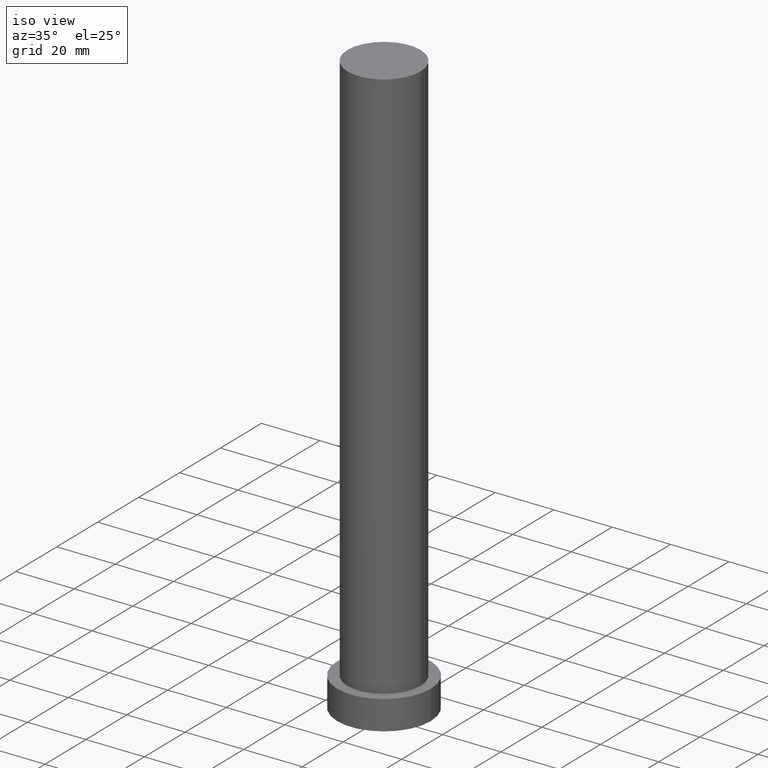
[diagram: clean part render]
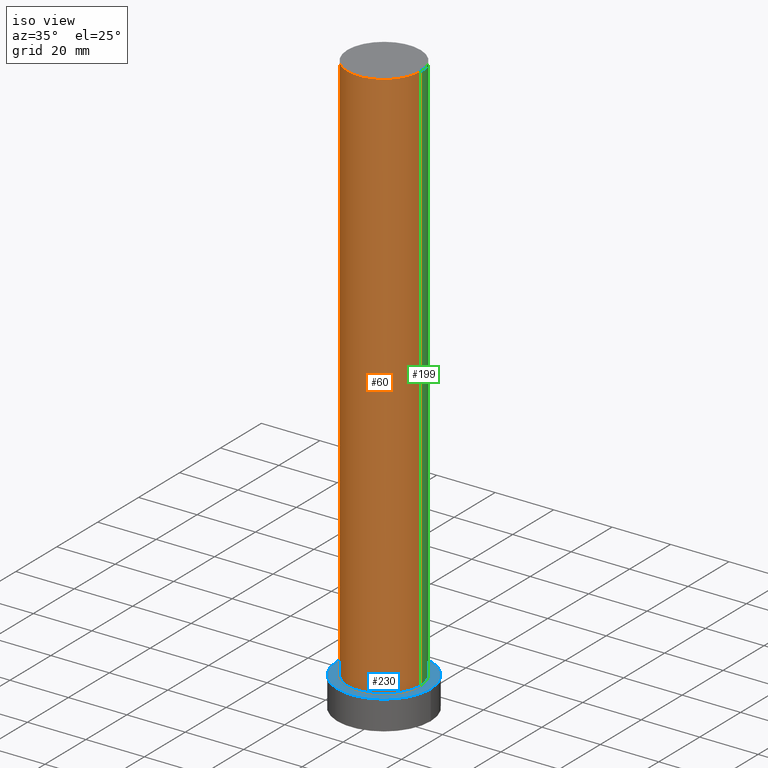
[diagram: same view with three faces highlighted in distinct colors, each labeled with its STEP entity id]
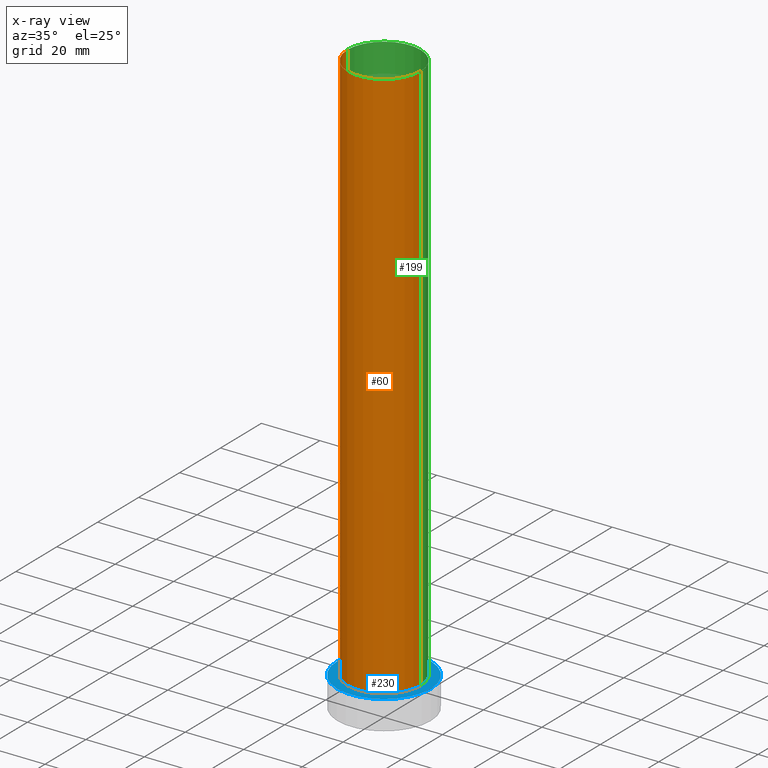
[diagram: x-ray of the same camera — body ghosted, the three highlighted faces saturated]
A machine part, iso view with three faces highlighted in distinct colors.
The next image is the same camera in x-ray (body ghosted, the three faces saturated) — at least one of them is partly hidden behind the body in this view.
Their STEP definitions:

[orange] entity #60 — the highlighted cylindrical surface (partial cylindrical patch) has radius 12.5 mm, axis along (-0, -0, -1).
#1 = CARTESIAN_POINT ( 'NONE',  ( 12.50000000000000000, 1.530808498934191521E-15, 10.00000000000000000 ) ) ;
#5 = CARTESIAN_POINT ( 'NONE',  ( -12.50000000000000000, 0.000000000000000000, 10.00000000000000000 ) ) ;
#14 = DIRECTION ( 'NONE',  ( 0.000000000000000000, 0.000000000000000000, 1.000000000000000000 ) ) ;
#15 = ORIENTED_EDGE ( 'NONE', *, *, #24, .F. ) ;
#18 = VECTOR ( 'NONE', #54, 1000.000000000000000 ) ;
#24 = EDGE_CURVE ( 'NONE', #128, #110, #134, .T. ) ;
#27 = ORIENTED_EDGE ( 'NONE', *, *, #161, .F. ) ;
#33 = ORIENTED_EDGE ( 'NONE', *, *, #65, .T. ) ;
#36 = CARTESIAN_POINT ( 'NONE',  ( -12.50000000000000000, 0.000000000000000000, 200.0000000000000000 ) ) ;
#45 = LINE ( 'NONE', #192, #61 ) ;
#48 = ORIENTED_EDGE ( 'NONE', *, *, #80, .T. ) ;
#54 = DIRECTION ( 'NONE',  ( -0.000000000000000000, -0.000000000000000000, -1.000000000000000000 ) ) ;
#60 = ADVANCED_FACE ( 'NONE', ( #131 ), #94, .T. ) ;
#61 = VECTOR ( 'NONE', #241, 1000.000000000000000 ) ;
#65 = EDGE_CURVE ( 'NONE', #128, #164, #95, .T. ) ;
#76 = CARTESIAN_POINT ( 'NONE',  ( 12.50000000000000000, 1.530808498934191521E-15, 200.0000000000000000 ) ) ;
#80 = EDGE_CURVE ( 'NONE', #164, #108, #105, .T. ) ;
#89 = AXIS2_PLACEMENT_3D ( 'NONE', #174, #213, #211 ) ;
#90 = DIRECTION ( 'NONE',  ( 1.000000000000000000, 0.000000000000000000, 0.000000000000000000 ) ) ;
#94 = CYLINDRICAL_SURFACE ( 'NONE', #193, 12.50000000000000000 ) ;
#95 = LINE ( 'NONE', #36, #18 ) ;
#105 = CIRCLE ( 'NONE', #89, 12.50000000000000000 ) ;
#108 = VERTEX_POINT ( 'NONE', #1 ) ;
#110 = VERTEX_POINT ( 'NONE', #76 ) ;
#113 = DIRECTION ( 'NONE',  ( -1.000000000000000000, 0.000000000000000000, 0.000000000000000000 ) ) ;
#128 = VERTEX_POINT ( 'NONE', #172 ) ;
#131 = FACE_OUTER_BOUND ( 'NONE', #185, .T. ) ;
#134 = CIRCLE ( 'NONE', #149, 12.50000000000000000 ) ;
#149 = AXIS2_PLACEMENT_3D ( 'NONE', #187, #14, #90 ) ;
#152 = CARTESIAN_POINT ( 'NONE',  ( 0.000000000000000000, 0.000000000000000000, 200.0000000000000000 ) ) ;
#161 = EDGE_CURVE ( 'NONE', #110, #108, #45, .T. ) ;
#164 = VERTEX_POINT ( 'NONE', #5 ) ;
#172 = CARTESIAN_POINT ( 'NONE',  ( -12.50000000000000000, 0.000000000000000000, 200.0000000000000000 ) ) ;
#174 = CARTESIAN_POINT ( 'NONE',  ( 0.000000000000000000, 0.000000000000000000, 10.00000000000000000 ) ) ;
#185 = EDGE_LOOP ( 'NONE', ( #27, #15, #33, #48 ) ) ;
#187 = CARTESIAN_POINT ( 'NONE',  ( 0.000000000000000000, 0.000000000000000000, 200.0000000000000000 ) ) ;
#192 = CARTESIAN_POINT ( 'NONE',  ( 12.50000000000000000, 1.530808498934191521E-15, 200.0000000000000000 ) ) ;
#193 = AXIS2_PLACEMENT_3D ( 'NONE', #152, #210, #113 ) ;
#210 = DIRECTION ( 'NONE',  ( -0.000000000000000000, -0.000000000000000000, -1.000000000000000000 ) ) ;
#211 = DIRECTION ( 'NONE',  ( 1.000000000000000000, 0.000000000000000000, 0.000000000000000000 ) ) ;
#213 = DIRECTION ( 'NONE',  ( 0.000000000000000000, 0.000000000000000000, 1.000000000000000000 ) ) ;
#241 = DIRECTION ( 'NONE',  ( -0.000000000000000000, -0.000000000000000000, -1.000000000000000000 ) ) ;

[blue] entity #230 — the highlighted planar face has unit normal (0, 0, 1).
#1 = CARTESIAN_POINT ( 'NONE',  ( 12.50000000000000000, 1.530808498934191521E-15, 10.00000000000000000 ) ) ;
#5 = CARTESIAN_POINT ( 'NONE',  ( -12.50000000000000000, 0.000000000000000000, 10.00000000000000000 ) ) ;
#6 = DIRECTION ( 'NONE',  ( 0.000000000000000000, 0.000000000000000000, 1.000000000000000000 ) ) ;
#12 = ORIENTED_EDGE ( 'NONE', *, *, #249, .F. ) ;
#16 = EDGE_CURVE ( 'NONE', #166, #231, #238, .T. ) ;
#31 = EDGE_LOOP ( 'NONE', ( #121, #205 ) ) ;
#40 = AXIS2_PLACEMENT_3D ( 'NONE', #159, #136, #102 ) ;
#47 = EDGE_LOOP ( 'NONE', ( #208, #12 ) ) ;
#58 = DIRECTION ( 'NONE',  ( 1.000000000000000000, 0.000000000000000000, -0.000000000000000000 ) ) ;
#74 = CIRCLE ( 'NONE', #255, 16.00000000000000000 ) ;
#78 = PLANE ( 'NONE',  #227 ) ;
#80 = EDGE_CURVE ( 'NONE', #164, #108, #105, .T. ) ;
#87 = DIRECTION ( 'NONE',  ( 1.000000000000000000, 0.000000000000000000, 0.000000000000000000 ) ) ;
#89 = AXIS2_PLACEMENT_3D ( 'NONE', #174, #213, #211 ) ;
#98 = FACE_BOUND ( 'NONE', #47, .T. ) ;
#99 = CARTESIAN_POINT ( 'NONE',  ( 16.00000000000000000, 1.959434878635765131E-15, 10.00000000000000000 ) ) ;
#102 = DIRECTION ( 'NONE',  ( 1.000000000000000000, 0.000000000000000000, 0.000000000000000000 ) ) ;
#105 = CIRCLE ( 'NONE', #89, 12.50000000000000000 ) ;
#108 = VERTEX_POINT ( 'NONE', #1 ) ;
#118 = CARTESIAN_POINT ( 'NONE',  ( 0.000000000000000000, 0.000000000000000000, 10.00000000000000000 ) ) ;
#121 = ORIENTED_EDGE ( 'NONE', *, *, #217, .T. ) ;
#129 = CIRCLE ( 'NONE', #40, 12.50000000000000000 ) ;
#136 = DIRECTION ( 'NONE',  ( 0.000000000000000000, 0.000000000000000000, 1.000000000000000000 ) ) ;
#138 = CARTESIAN_POINT ( 'NONE',  ( -16.00000000000000000, 0.000000000000000000, 10.00000000000000000 ) ) ;
#155 = CARTESIAN_POINT ( 'NONE',  ( 0.000000000000000000, 0.000000000000000000, 10.00000000000000000 ) ) ;
#159 = CARTESIAN_POINT ( 'NONE',  ( 0.000000000000000000, 0.000000000000000000, 10.00000000000000000 ) ) ;
#164 = VERTEX_POINT ( 'NONE', #5 ) ;
#166 = VERTEX_POINT ( 'NONE', #99 ) ;
#174 = CARTESIAN_POINT ( 'NONE',  ( 0.000000000000000000, 0.000000000000000000, 10.00000000000000000 ) ) ;
#177 = FACE_OUTER_BOUND ( 'NONE', #31, .T. ) ;
#178 = DIRECTION ( 'NONE',  ( 1.000000000000000000, 0.000000000000000000, 0.000000000000000000 ) ) ;
#195 = DIRECTION ( 'NONE',  ( 0.000000000000000000, 0.000000000000000000, 1.000000000000000000 ) ) ;
#205 = ORIENTED_EDGE ( 'NONE', *, *, #16, .T. ) ;
#207 = CARTESIAN_POINT ( 'NONE',  ( 0.000000000000000000, 0.000000000000000000, 10.00000000000000000 ) ) ;
#208 = ORIENTED_EDGE ( 'NONE', *, *, #80, .F. ) ;
#211 = DIRECTION ( 'NONE',  ( 1.000000000000000000, 0.000000000000000000, 0.000000000000000000 ) ) ;
#213 = DIRECTION ( 'NONE',  ( 0.000000000000000000, 0.000000000000000000, 1.000000000000000000 ) ) ;
#217 = EDGE_CURVE ( 'NONE', #231, #166, #74, .T. ) ;
#227 = AXIS2_PLACEMENT_3D ( 'NONE', #155, #6, #58 ) ;
#230 = ADVANCED_FACE ( 'NONE', ( #98, #177 ), #78, .T. ) ;
#231 = VERTEX_POINT ( 'NONE', #138 ) ;
#238 = CIRCLE ( 'NONE', #254, 16.00000000000000000 ) ;
#249 = EDGE_CURVE ( 'NONE', #108, #164, #129, .T. ) ;
#251 = DIRECTION ( 'NONE',  ( 0.000000000000000000, 0.000000000000000000, 1.000000000000000000 ) ) ;
#254 = AXIS2_PLACEMENT_3D ( 'NONE', #207, #251, #87 ) ;
#255 = AXIS2_PLACEMENT_3D ( 'NONE', #118, #195, #178 ) ;

[green] entity #199 — the highlighted cylindrical surface (partial cylindrical patch) has radius 12.5 mm, axis along (-0, -0, -1).
#1 = CARTESIAN_POINT ( 'NONE',  ( 12.50000000000000000, 1.530808498934191521E-15, 10.00000000000000000 ) ) ;
#5 = CARTESIAN_POINT ( 'NONE',  ( -12.50000000000000000, 0.000000000000000000, 10.00000000000000000 ) ) ;
#17 = DIRECTION ( 'NONE',  ( 0.000000000000000000, 0.000000000000000000, 1.000000000000000000 ) ) ;
#18 = VECTOR ( 'NONE', #54, 1000.000000000000000 ) ;
#36 = CARTESIAN_POINT ( 'NONE',  ( -12.50000000000000000, 0.000000000000000000, 200.0000000000000000 ) ) ;
#40 = AXIS2_PLACEMENT_3D ( 'NONE', #159, #136, #102 ) ;
#42 = CARTESIAN_POINT ( 'NONE',  ( 0.000000000000000000, 0.000000000000000000, 200.0000000000000000 ) ) ;
#44 = EDGE_CURVE ( 'NONE', #110, #128, #242, .T. ) ;
#45 = LINE ( 'NONE', #192, #61 ) ;
#54 = DIRECTION ( 'NONE',  ( -0.000000000000000000, -0.000000000000000000, -1.000000000000000000 ) ) ;
#59 = DIRECTION ( 'NONE',  ( -1.000000000000000000, 0.000000000000000000, 0.000000000000000000 ) ) ;
#61 = VECTOR ( 'NONE', #241, 1000.000000000000000 ) ;
#65 = EDGE_CURVE ( 'NONE', #128, #164, #95, .T. ) ;
#73 = AXIS2_PLACEMENT_3D ( 'NONE', #189, #17, #235 ) ;
#76 = CARTESIAN_POINT ( 'NONE',  ( 12.50000000000000000, 1.530808498934191521E-15, 200.0000000000000000 ) ) ;
#77 = FACE_OUTER_BOUND ( 'NONE', #91, .T. ) ;
#91 = EDGE_LOOP ( 'NONE', ( #245, #183, #203, #144 ) ) ;
#95 = LINE ( 'NONE', #36, #18 ) ;
#102 = DIRECTION ( 'NONE',  ( 1.000000000000000000, 0.000000000000000000, 0.000000000000000000 ) ) ;
#108 = VERTEX_POINT ( 'NONE', #1 ) ;
#110 = VERTEX_POINT ( 'NONE', #76 ) ;
#128 = VERTEX_POINT ( 'NONE', #172 ) ;
#129 = CIRCLE ( 'NONE', #40, 12.50000000000000000 ) ;
#136 = DIRECTION ( 'NONE',  ( 0.000000000000000000, 0.000000000000000000, 1.000000000000000000 ) ) ;
#144 = ORIENTED_EDGE ( 'NONE', *, *, #65, .F. ) ;
#150 = AXIS2_PLACEMENT_3D ( 'NONE', #42, #218, #59 ) ;
#159 = CARTESIAN_POINT ( 'NONE',  ( 0.000000000000000000, 0.000000000000000000, 10.00000000000000000 ) ) ;
#161 = EDGE_CURVE ( 'NONE', #110, #108, #45, .T. ) ;
#164 = VERTEX_POINT ( 'NONE', #5 ) ;
#172 = CARTESIAN_POINT ( 'NONE',  ( -12.50000000000000000, 0.000000000000000000, 200.0000000000000000 ) ) ;
#183 = ORIENTED_EDGE ( 'NONE', *, *, #161, .T. ) ;
#189 = CARTESIAN_POINT ( 'NONE',  ( 0.000000000000000000, 0.000000000000000000, 200.0000000000000000 ) ) ;
#192 = CARTESIAN_POINT ( 'NONE',  ( 12.50000000000000000, 1.530808498934191521E-15, 200.0000000000000000 ) ) ;
#199 = ADVANCED_FACE ( 'NONE', ( #77 ), #215, .T. ) ;
#203 = ORIENTED_EDGE ( 'NONE', *, *, #249, .T. ) ;
#215 = CYLINDRICAL_SURFACE ( 'NONE', #150, 12.50000000000000000 ) ;
#218 = DIRECTION ( 'NONE',  ( -0.000000000000000000, -0.000000000000000000, -1.000000000000000000 ) ) ;
#235 = DIRECTION ( 'NONE',  ( 1.000000000000000000, 0.000000000000000000, 0.000000000000000000 ) ) ;
#241 = DIRECTION ( 'NONE',  ( -0.000000000000000000, -0.000000000000000000, -1.000000000000000000 ) ) ;
#242 = CIRCLE ( 'NONE', #73, 12.50000000000000000 ) ;
#245 = ORIENTED_EDGE ( 'NONE', *, *, #44, .F. ) ;
#249 = EDGE_CURVE ( 'NONE', #108, #164, #129, .T. ) ;